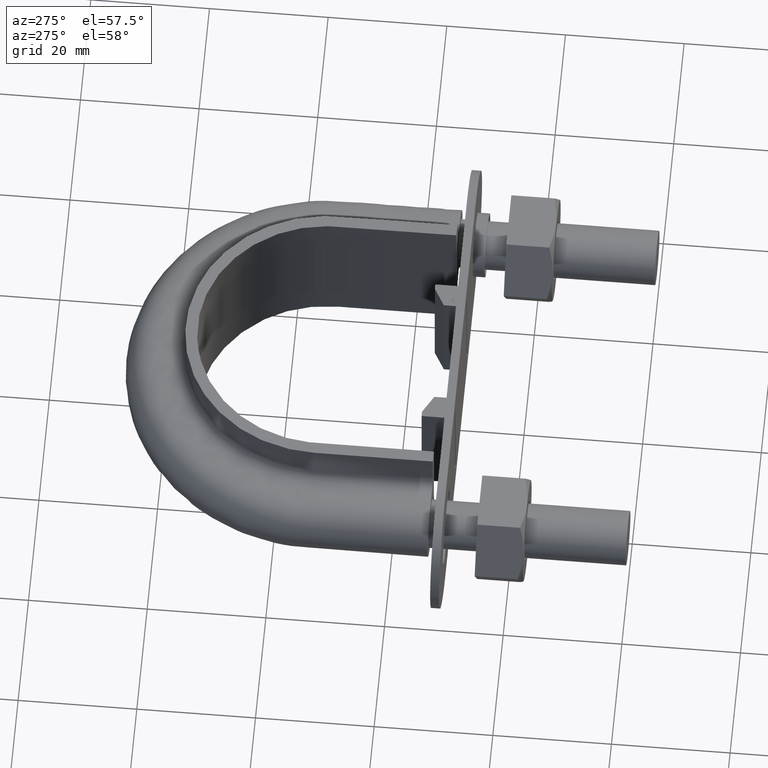
[diagram: clean part render]
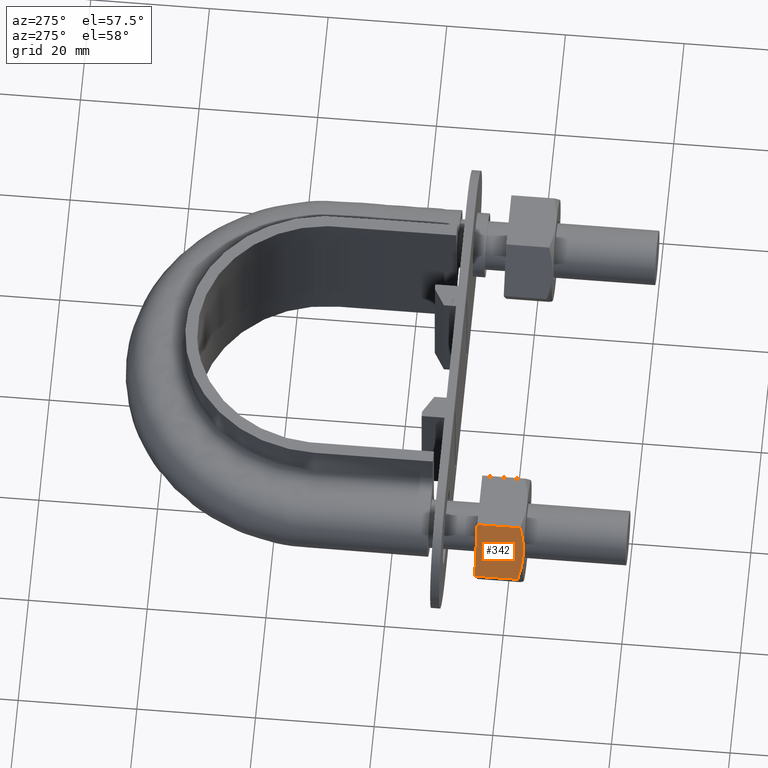
[diagram: same view with one face highlighted and labeled with its STEP entity id]
A machine part, auxiliary view. The second image highlights one B-rep face of the part: STEP entity #342.
In plain terms, the highlighted planar face has unit normal (0.866, -0, -0.5).
Its self-contained STEP definition (entity closure, byte-faithful):
#342 = ADVANCED_FACE( '', ( #554 ), #555, .F. );
#554 = FACE_OUTER_BOUND( '', #1636, .T. );
#555 = PLANE( '', #1637 );
#1636 = EDGE_LOOP( '', ( #2269, #2270, #2271, #2272, #2273 ) );
#1637 = AXIS2_PLACEMENT_3D( '', #2274, #2275, #2276 );
#2269 = ORIENTED_EDGE( '', *, *, #2712, .F. );
#2270 = ORIENTED_EDGE( '', *, *, #2717, .F. );
#2271 = ORIENTED_EDGE( '', *, *, #2711, .F. );
#2272 = ORIENTED_EDGE( '', *, *, #2708, .F. );
#2273 = ORIENTED_EDGE( '', *, *, #2718, .F. );
#2274 = CARTESIAN_POINT( '', ( -37.8149545762238, 25.0000000000002, 4.60059662997636E-012 ) );
#2275 = DIRECTION( '', ( 0.866025403784202, -1.81492883563560E-016, -0.500000000000410 ) );
#2276 = DIRECTION( '', ( -0.500000000000410, 1.75487645984624E-016, -0.866025403784202 ) );
#2708 = EDGE_CURVE( '', #3060, #3042, #3062, .T. );
#2711 = EDGE_CURVE( '', #3042, #3063, #3067, .F. );
#2712 = EDGE_CURVE( '', #3020, #3068, #3069, .T. );
#2717 = EDGE_CURVE( '', #3063, #3020, #3075, .T. );
#2718 = EDGE_CURVE( '', #3068, #3060, #3076, .T. );
#3020 = VERTEX_POINT( '', #3745 );
#3042 = VERTEX_POINT( '', #3782 );
#3060 = VERTEX_POINT( '', #3804 );
#3062 = LINE( '', #3806, #3807 );
#3063 = VERTEX_POINT( '', #3808 );
#3067 = LINE( '', #3813, #3814 );
#3068 = VERTEX_POINT( '', #3815 );
#3069 = B_SPLINE_CURVE_WITH_KNOTS( '', 3, ( #3816, #3817, #3818, #3819, #3820, #3821, #3822, #3823 ), .UNSPECIFIED., .F., .F., ( 4, 2, 2, 4 ), ( 0.00493529902949373, 0.00616408349151779, 0.00739286795354186, 0.00985043687758998 ), .UNSPECIFIED. );
#3075 = B_SPLINE_CURVE_WITH_KNOTS( '', 3, ( #3840, #3841, #3842, #3843, #3844, #3845 ), .UNSPECIFIED., .F., .F., ( 4, 2, 4 ), ( 7.17194508351964E-007, 0.00246800811200104, 0.00493529902949373 ), .UNSPECIFIED. );
#3076 = LINE( '', #3846, #3847 );
#3745 = CARTESIAN_POINT( '', ( -35.3612159321659, 17.0000000000002, 4.25000000000348 ) );
#3782 = CARTESIAN_POINT( '', ( -32.9224662525125, 25.0000000000002, 8.47403835210099 ) );
#3804 = CARTESIAN_POINT( '', ( -37.7999656118193, 25.0000000000002, 0.0259616479059724 ) );
#3806 = CARTESIAN_POINT( '', ( -37.8112159321679, 25.0000000000002, 0.00647552146084859 ) );
#3807 = VECTOR( '', #4309, 1000.00000000000 );
#3808 = CARTESIAN_POINT( '', ( -32.9224662525125, 17.7505553499467, 8.47403835210099 ) );
#3813 = CARTESIAN_POINT( '', ( -32.9224662525125, 25.0000000000002, 8.47403835210099 ) );
#3814 = VECTOR( '', #4314, 999.999999999996 );
#3815 = CARTESIAN_POINT( '', ( -37.7999656118193, 17.7505553499467, 0.0259616479059721 ) );
#3816 = CARTESIAN_POINT( '', ( -35.3612159321659, 17.0000000000002, 4.25000000000346 ) );
#3817 = CARTESIAN_POINT( '', ( -35.5680707460415, 17.0000000000002, 3.89171695258105 ) );
#3818 = CARTESIAN_POINT( '', ( -35.7759593429675, 17.0177112141222, 3.53164334039148 ) );
#3819 = CARTESIAN_POINT( '', ( -36.1872154329953, 17.0863020976800, 2.81932689754186 ) );
#3820 = CARTESIAN_POINT( '', ( -36.3914764911651, 17.1371114863341, 2.46553636678438 ) );
#3821 = CARTESIAN_POINT( '', ( -37.0006497745576, 17.3331491064657, 1.41041728933623 ) );
#3822 = CARTESIAN_POINT( '', ( -37.4019654977712, 17.5218250443852, 0.715318066854789 ) );
#3823 = CARTESIAN_POINT( '', ( -37.7999656118193, 17.7505553499467, 0.0259616479059699 ) );
#3840 = CARTESIAN_POINT( '', ( -32.9224662525124, 17.7505553499467, 8.47403835210095 ) );
#3841 = CARTESIAN_POINT( '', ( -33.3215180192848, 17.5212206605157, 7.78286041720181 ) );
#3842 = CARTESIAN_POINT( '', ( -33.7234521124779, 17.3324529479807, 7.08669014649799 ) );
#3843 = CARTESIAN_POINT( '', ( -34.5355975738471, 17.0714150925761, 5.68001294427155 ) );
#3844 = CARTESIAN_POINT( '', ( -34.9458696942469, 17.0000000000002, 4.96940078681095 ) );
#3845 = CARTESIAN_POINT( '', ( -35.3612159321659, 17.0000000000002, 4.25000000000346 ) );
#3846 = CARTESIAN_POINT( '', ( -37.7999656118193, 25.0000000000002, 0.0259616479059744 ) );
#3847 = VECTOR( '', #4319, 999.999999999996 );
#4309 = DIRECTION( '', ( 0.500000000000402, -1.75487645984623E-016, 0.866025403784207 ) );
#4314 = DIRECTION( '', ( 2.44921270764475E-016, 1.00000000000000, 6.12303176911189E-017 ) );
#4319 = DIRECTION( '', ( 2.44921270764475E-016, 1.00000000000000, 6.12303176911189E-017 ) );